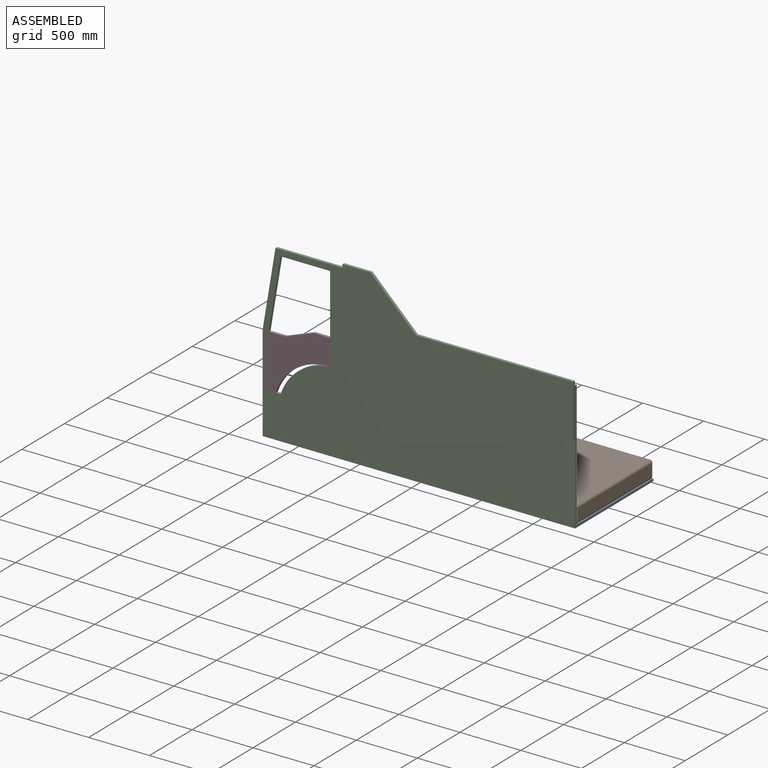
[diagram: assembled view]
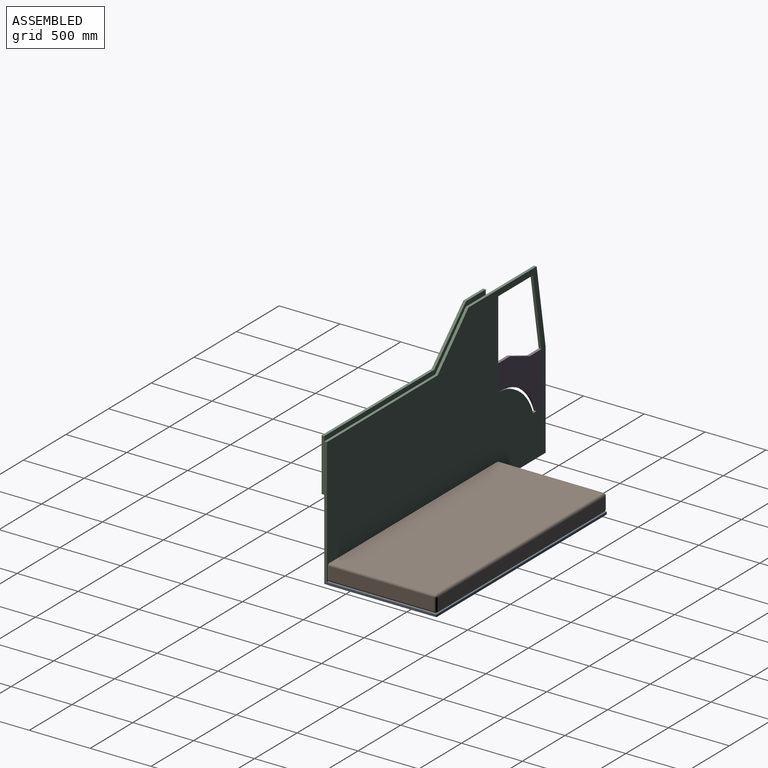
[diagram: assembled view, second angle]
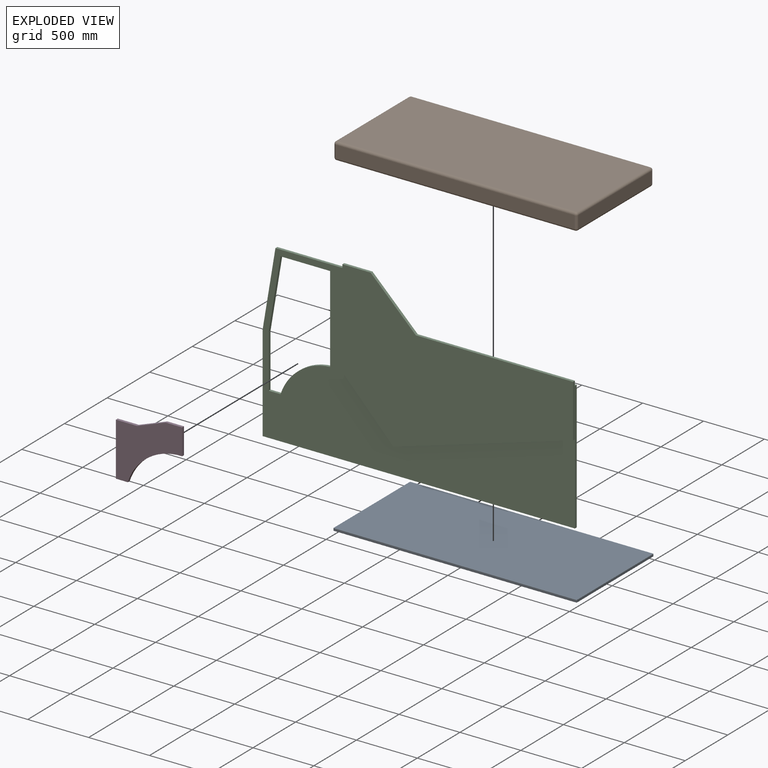
[diagram: exploded view]
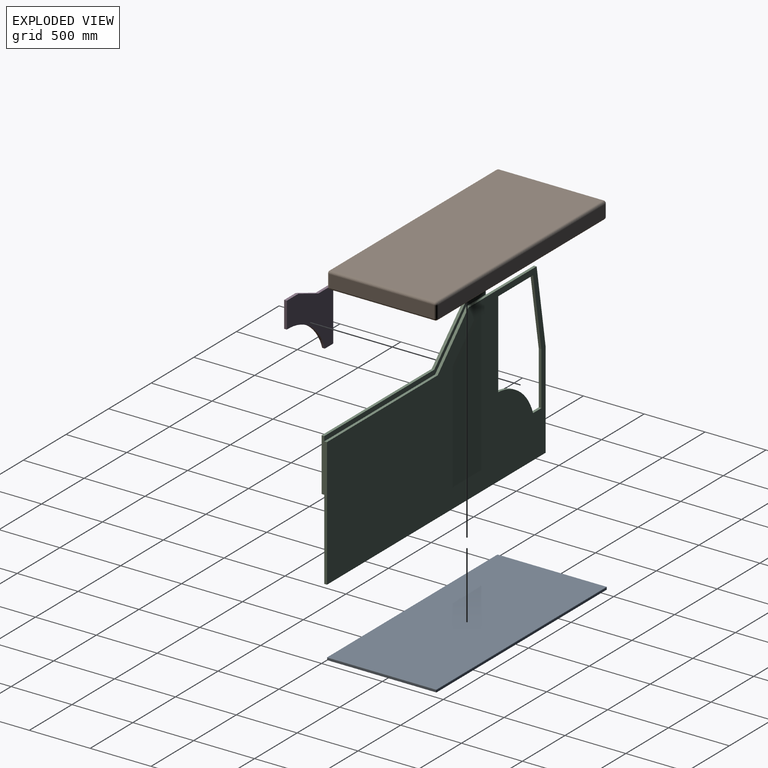
[diagram: exploded view, second angle]
ASSEMBLY  parts=4 mates=4
PART A: 26 faces, bbox 2000x900x22 mm
  f0: plane 1996x18mm, normal (0,1,0), area 35928mm2, adj f6,f10,f11,f12
  f1: plane 896x18mm, normal (-1,0,0), area 16128mm2, adj f6,f9,f13,f14
  f2: plane 1996x18mm, normal (0,-1,0), area 35928mm2, adj f14,f19,f22,f25
  f3: plane 896x18mm, normal (1,0,0), area 16128mm2, adj f11,f20,f21,f25
  f4: plane 1996x896mm, normal (0,0,1), area 1788416mm2, adj f9,f10,f19,f20
  f5: plane 1996x896mm, normal (0,0,-1), area 1788416mm2, adj f12,f13,f21,f22
  f6: plane 18x2mm, normal (-0.71,0.71,0), area 50.9mm2, adj f0,f1,f7,f8
  f7: plane 2x2mm, normal (-0.58,0.58,0.58), area 3.5mm2, adj f6,f9,f10
  f8: plane 2x2mm, normal (-0.58,0.58,-0.58), area 3.5mm2, adj f6,f12,f13
  f9: plane 896x2mm, normal (-0.71,0,0.71), area 2534.3mm2, adj f1,f4,f7,f15
  f10: plane 1996x2mm, normal (0,0.71,0.71), area 5645.5mm2, adj f0,f4,f7,f16
  f11: plane 18x2mm, normal (0.71,0.71,0), area 50.9mm2, adj f0,f3,f16,f17
  f12: plane 1996x2mm, normal (0,0.71,-0.71), area 5645.5mm2, adj f0,f5,f8,f17
  f13: plane 896x2mm, normal (-0.71,0,-0.71), area 2534.3mm2, adj f1,f5,f8,f18
  f14: plane 18x2mm, normal (-0.71,-0.71,0), area 50.9mm2, adj f1,f2,f15,f18
  f15: plane 2x2mm, normal (-0.58,-0.58,0.58), area 3.5mm2, adj f9,f14,f19
  f16: plane 2x2mm, normal (0.58,0.58,0.58), area 3.5mm2, adj f10,f11,f20
  f17: plane 2x2mm, normal (0.58,0.58,-0.58), area 3.5mm2, adj f11,f12,f21
  f18: plane 2x2mm, normal (-0.58,-0.58,-0.58), area 3.5mm2, adj f13,f14,f22
  f19: plane 1996x2mm, normal (0,-0.71,0.71), area 5645.5mm2, adj f2,f4,f15,f23
  f20: plane 896x2mm, normal (0.71,0,0.71), area 2534.3mm2, adj f3,f4,f16,f23
  f21: plane 896x2mm, normal (0.71,0,-0.71), area 2534.3mm2, adj f3,f5,f17,f24
  f22: plane 1996x2mm, normal (0,-0.71,-0.71), area 5645.5mm2, adj f2,f5,f18,f24
  f23: plane 2x2mm, normal (0.58,-0.58,0.58), area 3.5mm2, adj f19,f20,f25
  f24: plane 2x2mm, normal (0.58,-0.58,-0.58), area 3.5mm2, adj f21,f22,f25
  f25: plane 18x2mm, normal (0.71,-0.71,0), area 50.9mm2, adj f2,f3,f23,f24
PART B: 26 faces, bbox 2000x900x140 mm
  f0: plane 1960x100mm, normal (0,1,0), area 196000mm2, adj f14,f19,f22,f25
  f1: plane 860x100mm, normal (-1,0,0), area 86000mm2, adj f11,f20,f21,f25
  f2: plane 1960x100mm, normal (0,-1,0), area 196000mm2, adj f6,f10,f11,f12
  f3: plane 860x100mm, normal (1,0,0), area 86000mm2, adj f6,f9,f13,f14
  f4: plane 1960x860mm, normal (0,0,1), area 1685600mm2, adj f9,f10,f19,f20
  f5: plane 1960x860mm, normal (0,0,-1), area 1685600mm2, adj f12,f13,f21,f22
  f6: cylinder r=20mm len=100mm, axis (0,0,1), area 3141.6mm2, adj f2,f3,f7,f8
  f7: sphere r=20mm, area 628.3mm2, adj f6,f9,f10
  f8: sphere r=20mm, area 628.3mm2, adj f6,f12,f13
  f9: cylinder r=20mm len=860mm, axis (0,-1,0), area 27017.7mm2, adj f3,f4,f7,f15
  f10: cylinder r=20mm len=1960mm, axis (-1,0,0), area 61575.2mm2, adj f2,f4,f7,f16
  f11: cylinder r=20mm len=100mm, axis (0,0,-1), area 3141.6mm2, adj f1,f2,f16,f17
  f12: cylinder r=20mm len=1960mm, axis (1,0,0), area 61575.2mm2, adj f2,f5,f8,f17
  f13: cylinder r=20mm len=860mm, axis (0,1,0), area 27017.7mm2, adj f3,f5,f8,f18
  f14: cylinder r=20mm len=100mm, axis (0,0,-1), area 3141.6mm2, adj f0,f3,f15,f18
  f15: sphere r=20mm, area 628.3mm2, adj f9,f14,f19
  f16: sphere r=20mm, area 628.3mm2, adj f10,f11,f20
  f17: sphere r=20mm, area 628.3mm2, adj f11,f12,f21
  f18: sphere r=20mm, area 628.3mm2, adj f13,f14,f22
  f19: cylinder r=20mm len=1960mm, axis (1,0,0), area 61575.2mm2, adj f0,f4,f15,f23
  f20: cylinder r=20mm len=860mm, axis (0,1,0), area 27017.7mm2, adj f1,f4,f16,f23
  f21: cylinder r=20mm len=860mm, axis (0,-1,0), area 27017.7mm2, adj f1,f5,f17,f24
  f22: cylinder r=20mm len=1960mm, axis (-1,0,0), area 61575.2mm2, adj f0,f5,f18,f24
  f23: sphere r=20mm, area 628.3mm2, adj f19,f20,f25
  f24: sphere r=20mm, area 628.3mm2, adj f21,f22,f25
  f25: cylinder r=20mm len=100mm, axis (0,0,1), area 3141.6mm2, adj f0,f1,f23,f24
PART C: 24 faces, bbox 44x2565.5x1463.6 mm
  f0: plane 2565.4x1424mm, normal (1,0,0), area 1359503.8mm2, adj f1,f2,f3,f6,f7,f8,f9,f10
  f1: plane 788.31x22mm, normal (0,-1,0), area 17342.8mm2, adj f0,f2,f13,f14
  f2: plane 2565.4x22mm, normal (0,0,-1), area 56438.8mm2, adj f0,f1,f3,f14
  f3: plane 1058.63x22mm, normal (0,1,0), area 23289.9mm2, adj f0,f2,f4,f14,f23
  f4: plane 1299.66x22mm, normal (0,0,1), area 28592.6mm2, adj f3,f5,f14,f23
  f5: plane 365.37x360.91mm, normal (0,0.71,0.7), area 11298.6mm2, adj f4,f6,f14,f23
  f6: plane 799.23x22mm, normal (0,0,1), area 17583mm2, adj f0,f5,f13,f14,f23
  f7: plane 712x22mm, normal (0,-1,0), area 15664mm2, adj f0,f8,f12,f14
  f8: cylinder r=457.94mm len=408.11mm, axis (-1,0,0), area 11992.6mm2, adj f0,f7,f9,f14
  f9: plane 97.29x22mm, normal (0,0,1), area 2140.3mm2, adj f0,f8,f10,f14
  f10: plane 437.96x22mm, normal (0,1,0), area 9635.1mm2, adj f0,f9,f11,f14
  f11: plane 585.69x97.29mm, normal (0,0.99,-0.16), area 13061.8mm2, adj f0,f10,f12,f14
  f12: plane 408.11x22mm, normal (0,0,-1), area 8978.5mm2, adj f0,f7,f11,f14
  f13: plane 635.69x105.59mm, normal (0,-0.99,0.16), area 14176.9mm2, adj f0,f1,f6,f14
  f14: plane 2565.4x1424mm, normal (-1,0,0), area 2680964.1mm2, adj f1,f2,f3,f4,f5,f6,f7,f8
  f15: plane 232.35x22mm, normal (0,0,1), area 5111.8mm2, adj f16,f21,f22,f23
  f16: plane 801.62x22mm, normal (0,-1,0), area 17635.7mm2, adj f0,f15,f17,f22,f23
  f17: plane 441.47x418.24mm, normal (0,-0.73,-0.69), area 13378.9mm2, adj f0,f16,f18,f22
  f18: plane 1476.76x441.47mm, normal (0,0.29,-0.96), area 33909.4mm2, adj f0,f17,f19,f22,f23
  f19: plane 435.66x22mm, normal (0,1,0), area 9584.6mm2, adj f18,f20,f22,f23
  f20: plane 1290.88x22mm, normal (0,0,1), area 28399.3mm2, adj f19,f21,f22,f23
  f21: plane 371.77x365.96mm, normal (0,0.7,0.71), area 11476.7mm2, adj f15,f20,f22,f23
  f22: plane 1895x1243.1mm, normal (1,0,0), area 1396938.4mm2, adj f15,f16,f17,f18,f19,f20,f21
  f23: plane 1895x801.65mm, normal (-1,0,0), area 75478.1mm2, adj f3,f4,f5,f6,f15,f16,f18,f19
PART D: 9 faces, bbox 22x544.2x526.1 mm
  f0: plane 438.14x22mm, normal (0,-1,0), area 9639.1mm2, adj f1,f6,f7,f8
  f1: plane 97.82x22mm, normal (0,0,-1), area 2152.1mm2, adj f0,f2,f7,f8
  f2: cylinder r=457.38mm len=446.41mm, axis (-1,0,0), area 12831.8mm2, adj f1,f3,f7,f8
  f3: plane 214.22x22mm, normal (0,1,0), area 4712.9mm2, adj f2,f4,f7,f8
  f4: plane 135.76x22mm, normal (0,0,1), area 2986.6mm2, adj f3,f5,f7,f8
  f5: plane 234.44x87.92mm, normal (0,-0.35,0.94), area 5508.5mm2, adj f4,f6,f7,f8
  f6: plane 174.03x22mm, normal (0,0,1), area 3828.8mm2, adj f0,f5,f7,f8
  f7: plane 544.23x526.05mm, normal (1,0,0), area 157763.9mm2, adj f0,f1,f2,f3,f4,f5,f6
  f8: plane 544.23x526.05mm, normal (-1,0,0), area 157763.9mm2, adj f0,f1,f2,f3,f4,f5,f6
PLACE A t=(18.89,8.07,-211.11)mm fixed
PLACE B t=(18.89,8.07,-189.11)mm
PLACE C rot(axis=(0,0,-1),90deg) t=(1018.48,-441.93,452.88)mm
PLACE D rot(axis=(0,0,-1),90deg) t=(979.65,-441.93,452.88)mm
MATE fastened B.f5 <-> A.f4  axis (0,0,-1) through (18.89,8.07,-189.11)mm
MATE planar B.f5 <-> A.f4  axis (0,0,-1) through (18.89,8.07,-189.11)mm
MATE fastened D.f7 <-> C.f0  axis (0,-1,0) through (-991.52,-463.93,452.88)mm
MATE planar A.f2 <-> C.f14  axis (0,-1,0) through (18.89,-441.93,-200.11)mm
